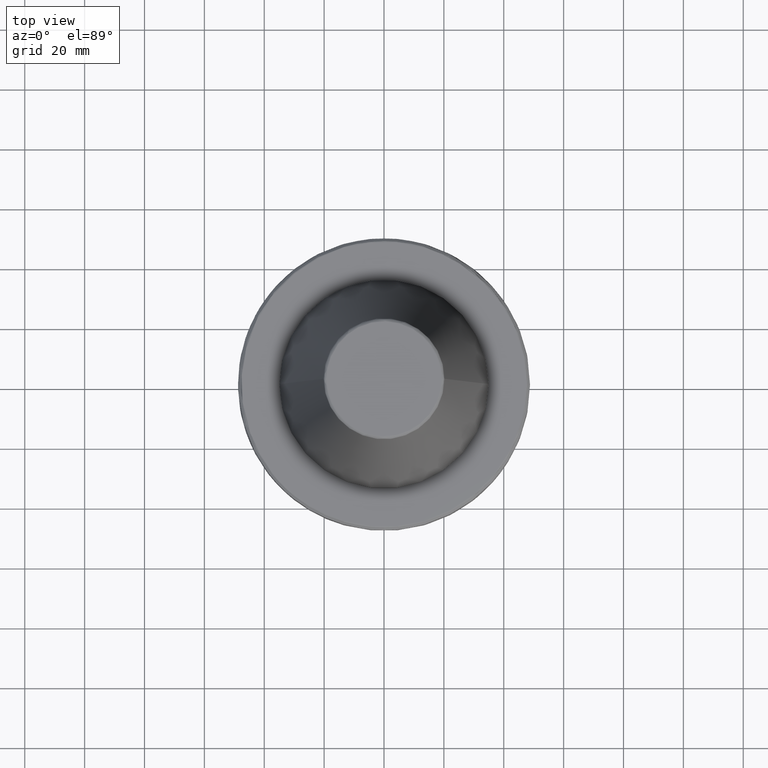
[diagram: clean part render]
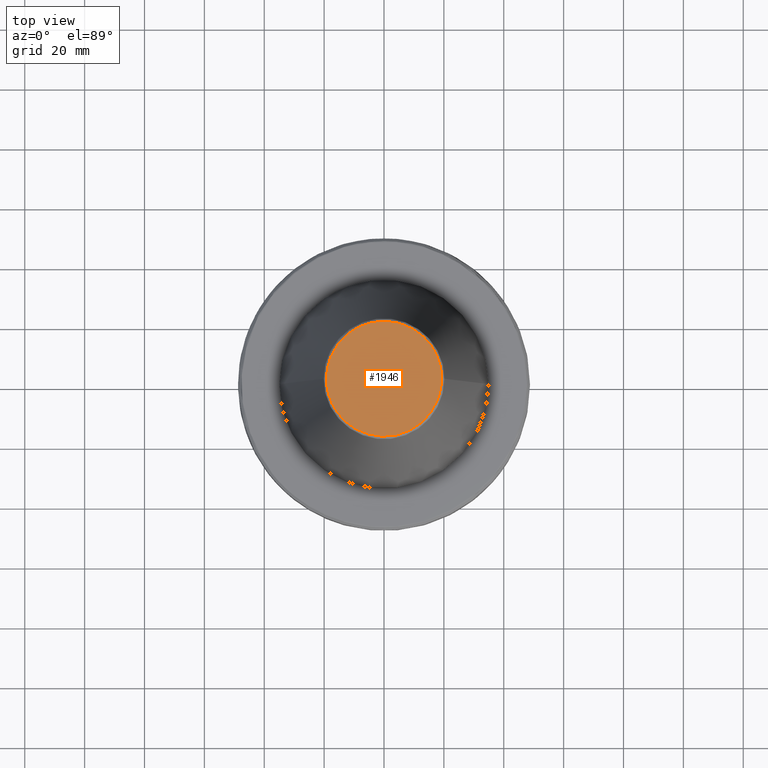
[diagram: same view with one face highlighted and labeled with its STEP entity id]
A machine part, top view. The second image highlights one B-rep face of the part: STEP entity #1946.
In plain terms, the highlighted planar face has unit normal (0, 0, 1).
Its self-contained STEP definition (entity closure, byte-faithful):
#119 = ORIENTED_EDGE ( 'NONE', *, *, #2793, .F. ) ;
#217 = CARTESIAN_POINT ( 'NONE',  ( -19.22157500054538900, 2.378200593091449400E-015, 101.7500000000000000 ) ) ;
#264 = VERTEX_POINT ( 'NONE', #577 ) ;
#271 = EDGE_LOOP ( 'NONE', ( #2365, #119 ) ) ;
#430 = CARTESIAN_POINT ( 'NONE',  ( 19.22157500054538900, 0.0000000000000000000, 101.7500000000000000 ) ) ;
#501 = CARTESIAN_POINT ( 'NONE',  ( -19.22157500054538900, 2.378200593091449400E-015, 101.7500000000000000 ) ) ;
#544 =( BOUNDED_CURVE ( )  B_SPLINE_CURVE ( 3, ( #1582, #3166, #2133, #501 ),
 .UNSPECIFIED., .F., .F. ) 
 B_SPLINE_CURVE_WITH_KNOTS ( ( 4, 4 ),
 ( 0.0000000000000000000, 1.000000000000000000 ),
 .UNSPECIFIED. ) 
 CURVE ( )  GEOMETRIC_REPRESENTATION_ITEM ( )  RATIONAL_B_SPLINE_CURVE ( ( 1.000000000000000000, 0.3333333333333333700, 0.3333333333333333700, 1.000000000000000000 ) ) 
 REPRESENTATION_ITEM ( '' )  );
#577 = CARTESIAN_POINT ( 'NONE',  ( -19.22157500054538900, 2.378200593091449400E-015, 101.7500000000000000 ) ) ;
#910 = VERTEX_POINT ( 'NONE', #430 ) ;
#1273 = EDGE_CURVE ( 'NONE', #264, #910, #2857, .T. ) ;
#1279 = CARTESIAN_POINT ( 'NONE',  ( 19.22157500054538900, 38.44315000109077100, 101.7500000000000000 ) ) ;
#1381 = CARTESIAN_POINT ( 'NONE',  ( 19.22157500054538900, 0.0000000000000000000, 101.7500000000000000 ) ) ;
#1494 = FACE_OUTER_BOUND ( 'NONE', #271, .T. ) ;
#1582 = CARTESIAN_POINT ( 'NONE',  ( 19.22157500054538900, 0.0000000000000000000, 101.7500000000000000 ) ) ;
#1614 = AXIS2_PLACEMENT_3D ( 'NONE', #1751, #1748, #1736 ) ;
#1622 = CARTESIAN_POINT ( 'NONE',  ( -19.22157500054538600, 38.44315000109077100, 101.7500000000000000 ) ) ;
#1736 = DIRECTION ( 'NONE',  ( 1.000000000000000000, 0.0000000000000000000, -0.0000000000000000000 ) ) ;
#1748 = DIRECTION ( 'NONE',  ( 0.0000000000000000000, 0.0000000000000000000, 1.000000000000000000 ) ) ;
#1751 = CARTESIAN_POINT ( 'NONE',  ( 0.0000000000000000000, 0.0000000000000000000, 101.7500000000000000 ) ) ;
#1758 = PLANE ( 'NONE',  #1614 ) ;
#1946 = ADVANCED_FACE ( 'NONE', ( #1494 ), #1758, .T. ) ;
#2133 = CARTESIAN_POINT ( 'NONE',  ( -19.22157500054538900, -38.44315000109077100, 101.7500000000000000 ) ) ;
#2365 = ORIENTED_EDGE ( 'NONE', *, *, #1273, .F. ) ;
#2793 = EDGE_CURVE ( 'NONE', #910, #264, #544, .T. ) ;
#2857 =( BOUNDED_CURVE ( )  B_SPLINE_CURVE ( 3, ( #217, #1622, #1279, #1381 ),
 .UNSPECIFIED., .F., .F. ) 
 B_SPLINE_CURVE_WITH_KNOTS ( ( 4, 4 ),
 ( 0.0000000000000000000, 1.000000000000000000 ),
 .UNSPECIFIED. ) 
 CURVE ( )  GEOMETRIC_REPRESENTATION_ITEM ( )  RATIONAL_B_SPLINE_CURVE ( ( 1.000000000000000000, 0.3333333333333333700, 0.3333333333333333700, 1.000000000000000000 ) ) 
 REPRESENTATION_ITEM ( '' )  );
#3166 = CARTESIAN_POINT ( 'NONE',  ( 19.22157500054538900, -38.44315000109077100, 101.7500000000000000 ) ) ;